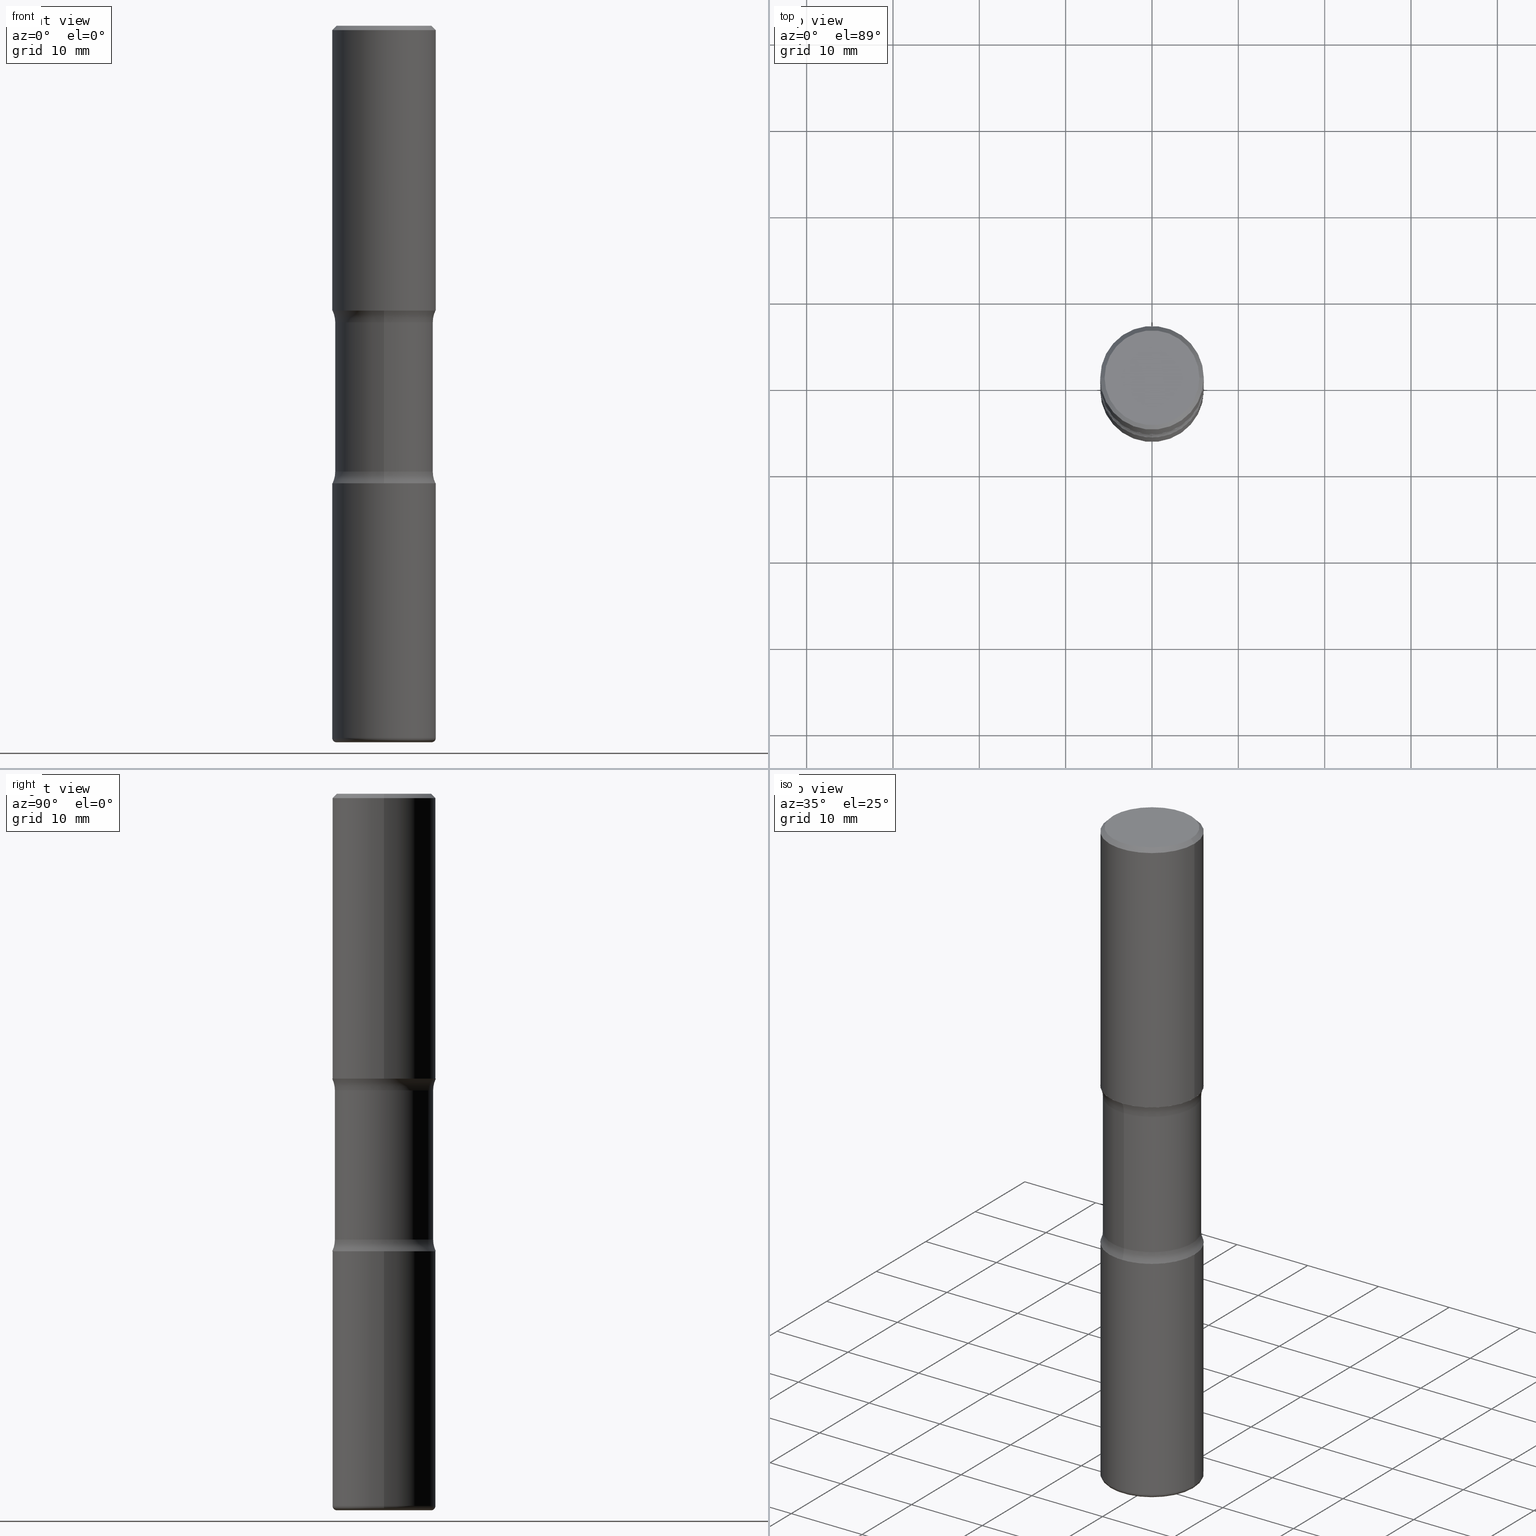
[diagram: canonical four-view strip — front | top / right | iso, engineering-drawing reading convention]
A machine part, canonical four-view strip (front | top / right | iso — engineering-drawing reading convention). The complete STEP part file that produces these views, byte-faithful:
ISO-10303-21;
HEADER;
FILE_DESCRIPTION (( 'STEP AP203' ),
    '1' );
FILE_NAME ('44641.STEP',
    '2024-03-02T02:22:08',
    ( '' ),
    ( '' ),
    'SwSTEP 2.0',
    'SolidWorks 2023',
    '' );
FILE_SCHEMA (( 'CONFIG_CONTROL_DESIGN' ));
ENDSEC;

DATA;
#1 = ORIENTED_EDGE ( 'NONE', *, *, #229, .F. ) ;
#2 = PRODUCT_DEFINITION_FORMATION_WITH_SPECIFIED_SOURCE ( 'ANY', '', #297, .NOT_KNOWN. ) ;
#3 = VERTEX_POINT ( 'NONE', #185 ) ;
#4 = ORIENTED_EDGE ( 'NONE', *, *, #502, .T. ) ;
#5 = CARTESIAN_POINT ( 'NONE',  ( -1.578600589287179513E-15, -0.2240000000000071378, -2.032737582675856469 ) ) ;
#6 = EDGE_LOOP ( 'NONE', ( #406, #545, #396, #144 ) ) ;
#7 = AXIS2_PLACEMENT_3D ( 'NONE', #197, #281, #65 ) ;
#8 = LINE ( 'NONE', #140, #350 ) ;
#9 = EDGE_CURVE ( 'NONE', #486, #104, #244, .T. ) ;
#10 = EDGE_LOOP ( 'NONE', ( #410, #77 ) ) ;
#11 = DIRECTION ( 'NONE',  ( 1.000000000000000000, -6.982962677686265922E-15, 0.000000000000000000 ) ) ;
#12 = EDGE_LOOP ( 'NONE', ( #180, #265, #146, #384 ) ) ;
#13 = FACE_OUTER_BOUND ( 'NONE', #514, .T. ) ;
#14 = CARTESIAN_POINT ( 'NONE',  ( 4.890937612370289799E-31, -6.982962677686315028E-17, -0.02000000000000006981 ) ) ;
#15 = ADVANCED_FACE ( 'NONE', ( #524 ), #218, .F. ) ;
#16 = CIRCLE ( 'NONE', #548, 0.2362000000000001598 ) ;
#17 = CARTESIAN_POINT ( 'NONE',  ( 0.2361999999999999655, -1.690279253850498574E-15, -0.02000000000000006981 ) ) ;
#18 = DIRECTION ( 'NONE',  ( 6.982962677686265922E-15, 1.000000000000000000, -3.658724991514637697E-15 ) ) ;
#19 = CARTESIAN_POINT ( 'NONE',  ( 1.509716530915770323E-15, 0.2161999999999999478, -7.633952904380885788E-16 ) ) ;
#20 = CARTESIAN_POINT ( 'NONE',  ( 4.970996349593989891E-29, -7.097265336677882202E-15, -2.032737582675857357 ) ) ;
#21 = DIRECTION ( 'NONE',  ( 2.390112245760045302E-29, -3.570755084071629599E-15, -1.000000000000000000 ) ) ;
#22 = CIRCLE ( 'NONE', #349, 0.2362000000000002431 ) ;
#23 = APPLICATION_PROTOCOL_DEFINITION ( 'international standard', 'config_control_design', 1994, #298 ) ;
#24 = CIRCLE ( 'NONE', #100, 0.2161999999999999478 ) ;
#25 = ADVANCED_FACE ( 'NONE', ( #324 ), #200, .T. ) ;
#26 = CARTESIAN_POINT ( 'NONE',  ( 3.177153072995728197E-29, -4.536132555425013945E-15, -1.299199999999999688 ) ) ;
#27 = LENGTH_MEASURE_WITH_UNIT ( LENGTH_MEASURE( 0.02539999999999999897 ), #532 );
#28 = CARTESIAN_POINT ( 'NONE',  ( 2.437053974512538889E-15, 0.3489999999999951474, -1.353062417324143452 ) ) ;
#29 = EDGE_CURVE ( 'NONE', #239, #398, #70, .T. ) ;
#30 = PERSON_AND_ORGANIZATION ( #262, #404 ) ;
#31 = FACE_OUTER_BOUND ( 'NONE', #266, .T. ) ;
#32 = EDGE_CURVE ( 'NONE', #555, #239, #337, .T. ) ;
#33 = PERSON_AND_ORGANIZATION ( #262, #404 ) ;
#34 = AXIS2_PLACEMENT_3D ( 'NONE', #400, #126, #294 ) ;
#35 = DIRECTION ( 'NONE',  ( -2.445468806185136597E-29, 3.491481338843145583E-15, 1.000000000000000000 ) ) ;
#36 = CC_DESIGN_APPROVAL ( #221, ( #2 ) ) ;
#37 = ORIENTED_EDGE ( 'NONE', *, *, #502, .F. ) ;
#38 = CALENDAR_DATE ( 2024, 1, 3 ) ;
#39 = CARTESIAN_POINT ( 'NONE',  ( 1.649375784469529460E-15, 0.2361999999999957189, -1.299200000000000799 ) ) ;
#40 = ORIENTED_EDGE ( 'NONE', *, *, #389, .T. ) ;
#41 = EDGE_CURVE ( 'NONE', #351, #486, #274, .T. ) ;
#42 = ORIENTED_EDGE ( 'NONE', *, *, #539, .F. ) ;
#43 = CONICAL_SURFACE ( 'NONE', #117, 0.2361999999999999655, 0.7853981633974477239 ) ;
#44 = AXIS2_PLACEMENT_3D ( 'NONE', #96, #470, #431 ) ;
#45 = EDGE_LOOP ( 'NONE', ( #89, #257, #37, #408 ) ) ;
#46 = ORIENTED_EDGE ( 'NONE', *, *, #158, .T. ) ;
#47 = CARTESIAN_POINT ( 'NONE',  ( 3.220740828674445240E-29, -4.473712408432105262E-15, -1.299199999999999688 ) ) ;
#48 = DIRECTION ( 'NONE',  ( 2.390112245760045302E-29, -3.570755084071629599E-15, -1.000000000000000000 ) ) ;
#49 = CARTESIAN_POINT ( 'NONE',  ( 7.942149041847466380E-29, -1.133928394416088156E-14, -3.247699999999999143 ) ) ;
#50 = CARTESIAN_POINT ( 'NONE',  ( 3.356562915839818253E-29, -4.655895980535632332E-15, -1.353062417324141897 ) ) ;
#51 = AXIS2_PLACEMENT_3D ( 'NONE', #535, #202, #288 ) ;
#52 = CC_DESIGN_APPROVAL ( #76, ( #310 ) ) ;
#53 = DIRECTION ( 'NONE',  ( 1.000000000000000000, -6.982962677686266711E-15, 4.876176775795935793E-29 ) ) ;
#54 = CARTESIAN_POINT ( 'NONE',  ( -2.394313801222215486E-15, -0.3490000000000071934, -2.032737582675856025 ) ) ;
#55 = DIRECTION ( 'NONE',  ( 2.390112245760045022E-29, -3.570755084071629599E-15, -1.000000000000000000 ) ) ;
#56 = EDGE_CURVE ( 'NONE', #439, #104, #533, .T. ) ;
#57 = ORIENTED_EDGE ( 'NONE', *, *, #136, .T. ) ;
#58 = DIRECTION ( 'NONE',  ( 1.000000000000000000, -6.982962677686266711E-15, 4.875778670202486949E-29 ) ) ;
#59 = DIRECTION ( 'NONE',  ( 1.000000000000000000, -6.982962677686265922E-15, 0.000000000000000000 ) ) ;
#60 = VECTOR ( 'NONE', #225, 39.37007874015748143 ) ;
#61 = AXIS2_PLACEMENT_3D ( 'NONE', #124, #355, #554 ) ;
#62 = FACE_OUTER_BOUND ( 'NONE', #448, .T. ) ;
#63 = LOCAL_TIME ( 21, 22, 8.000000000000000000, #123 ) ;
#64 = CARTESIAN_POINT ( 'NONE',  ( -1.578600589287196671E-15, -0.2240000000000045843, -1.353062417324141231 ) ) ;
#65 = DIRECTION ( 'NONE',  ( 6.982962677686265922E-15, 1.000000000000000000, -3.658724991514639274E-15 ) ) ;
#66 = EDGE_LOOP ( 'NONE', ( #159, #254, #378, #472 ) ) ;
#67 = EDGE_CURVE ( 'NONE', #353, #511, #22, .T. ) ;
#68 = PLANE ( 'NONE',  #273 ) ;
#69 = FACE_OUTER_BOUND ( 'NONE', #216, .T. ) ;
#70 = CIRCLE ( 'NONE', #427, 0.1250000000000000278 ) ;
#71 = PERSON_AND_ORGANIZATION ( #262, #404 ) ;
#72 = AXIS2_PLACEMENT_3D ( 'NONE', #28, #419, #238 ) ;
#73 = LINE ( 'NONE', #373, #330 ) ;
#74 = EDGE_LOOP ( 'NONE', ( #135, #558, #1, #484 ) ) ;
#75 = CARTESIAN_POINT ( 'NONE',  ( 0.000000000000000000, 0.000000000000000000, 0.000000000000000000 ) ) ;
#76 = APPROVAL ( #209, 'UNSPECIFIED' ) ;
#77 = ORIENTED_EDGE ( 'NONE', *, *, #389, .F. ) ;
#78 = DATE_AND_TIME ( #466, #464 ) ;
#79 = DIRECTION ( 'NONE',  ( 2.390112245760045302E-29, -3.570755084071629599E-15, -1.000000000000000000 ) ) ;
#80 = ORIENTED_EDGE ( 'NONE', *, *, #32, .T. ) ;
#81 = DATE_AND_TIME ( #469, #283 ) ;
#82 = AXIS2_PLACEMENT_3D ( 'NONE', #50, #440, #150 ) ;
#83 = CIRCLE ( 'NONE', #372, 0.2240000000000000324 ) ;
#84 = AXIS2_PLACEMENT_3D ( 'NONE', #20, #449, #192 ) ;
#85 = PLANE ( 'NONE',  #182 ) ;
#86 = AXIS2_PLACEMENT_3D ( 'NONE', #454, #500, #11 ) ;
#87 = ORIENTED_EDGE ( 'NONE', *, *, #232, .F. ) ;
#88 = CARTESIAN_POINT ( 'NONE',  ( 7.925676784453094467E-29, -1.150274379142710749E-14, -3.267699999999999605 ) ) ;
#89 = ORIENTED_EDGE ( 'NONE', *, *, #553, .T. ) ;
#90 = EDGE_CURVE ( 'NONE', #230, #341, #461, .T. ) ;
#91 = EDGE_LOOP ( 'NONE', ( #432, #477, #259, #305 ) ) ;
#92 = TOROIDAL_SURFACE ( 'NONE', #137, 0.3490000000000000879, 0.1250000000000000555 ) ;
#93 = ORIENTED_EDGE ( 'NONE', *, *, #133, .T. ) ;
#94 = PRODUCT_RELATED_PRODUCT_CATEGORY ( 'detail', '', ( #297 ) ) ;
#95 = DIRECTION ( 'NONE',  ( -2.445468806185136597E-29, 3.491481338843145583E-15, 1.000000000000000000 ) ) ;
#96 = CARTESIAN_POINT ( 'NONE',  ( 0.000000000000000000, 0.000000000000000000, 0.000000000000000000 ) ) ;
#97 = ORIENTED_EDGE ( 'NONE', *, *, #229, .T. ) ;
#98 = CARTESIAN_POINT ( 'NONE',  ( 4.890937612370289799E-31, -6.982962677686315028E-17, -0.02000000000000006981 ) ) ;
#99 = ORIENTED_EDGE ( 'NONE', *, *, #203, .T. ) ;
#100 = AXIS2_PLACEMENT_3D ( 'NONE', #153, #286, #58 ) ;
#101 = CIRCLE ( 'NONE', #393, 0.2162000000000001421 ) ;
#102 = CC_DESIGN_PERSON_AND_ORGANIZATION_ASSIGNMENT ( #30, #252, ( #297 ) ) ;
#103 = DIRECTION ( 'NONE',  ( 1.000000000000000000, -6.982962677686271444E-15, 0.000000000000000000 ) ) ;
#104 = VERTEX_POINT ( 'NONE', #17 ) ;
#105 = DIRECTION ( 'NONE',  ( 2.390112245760045302E-29, -3.570755084071629599E-15, -1.000000000000000000 ) ) ;
#106 = ORIENTED_EDGE ( 'NONE', *, *, #322, .F. ) ;
#107 = CARTESIAN_POINT ( 'NONE',  ( 2.224552586656857540E-29, -1.966707813050916280E-14, -3.267699999999999605 ) ) ;
#108 = DIRECTION ( 'NONE',  ( -2.445468806185136597E-29, 3.491481338843145583E-15, 1.000000000000000000 ) ) ;
#109 = ADVANCED_FACE ( 'NONE', ( #504 ), #43, .T. ) ;
#110 = CARTESIAN_POINT ( 'NONE',  ( 1.649375784469548393E-15, 0.2361999999999929711, -2.086600000000000676 ) ) ;
#111 = CARTESIAN_POINT ( 'NONE',  ( 3.177153072995728197E-29, -4.536132555425013945E-15, -1.299199999999999688 ) ) ;
#112 = EDGE_CURVE ( 'NONE', #468, #3, #453, .T. ) ;
#113 = DIRECTION ( 'NONE',  ( -2.445468806185136597E-29, 3.491481338843145583E-15, 1.000000000000000000 ) ) ;
#114 = DIRECTION ( 'NONE',  ( 1.000000000000000000, -6.982962677686266711E-15, 4.876176775795935793E-29 ) ) ;
#115 = APPROVAL_STATUS ( 'not_yet_approved' ) ;
#116 = CARTESIAN_POINT ( 'NONE',  ( 1.564183639801802684E-15, 0.2239999999999884583, -3.267700000000000049 ) ) ;
#117 = AXIS2_PLACEMENT_3D ( 'NONE', #154, #152, #465 ) ;
#118 = PERSON_AND_ORGANIZATION_ROLE ( 'classification_officer' ) ;
#119 = AXIS2_PLACEMENT_3D ( 'NONE', #157, #423, #333 ) ;
#120 = CC_DESIGN_PERSON_AND_ORGANIZATION_ASSIGNMENT ( #71, #543, ( #2 ) ) ;
#121 = AXIS2_PLACEMENT_3D ( 'NONE', #107, #323, #325 ) ;
#122 = DIRECTION ( 'NONE',  ( 1.000000000000000000, -6.860497997771530774E-15, 4.839828056240638266E-29 ) ) ;
#123 = COORDINATED_UNIVERSAL_TIME_OFFSET ( 5, 0, .BEHIND. ) ;
#124 = CARTESIAN_POINT ( 'NONE',  ( 5.102715210985905155E-29, -7.285324961630105839E-15, -2.086599999999999344 ) ) ;
#125 = DIRECTION ( 'NONE',  ( 1.000000000000000000, 0.000000000000000000, 0.000000000000000000 ) ) ;
#126 = DIRECTION ( 'NONE',  ( 2.390112245760045302E-29, -3.570755084071629599E-15, -1.000000000000000000 ) ) ;
#127 = ORIENTED_EDGE ( 'NONE', *, *, #67, .T. ) ;
#128 = CALENDAR_DATE ( 2024, 1, 3 ) ;
#129 = CLOSED_SHELL ( 'NONE', ( #399, #362, #109, #151, #447, #247 ) ) ;
#130 = AXIS2_PLACEMENT_3D ( 'NONE', #98, #343, #258 ) ;
#131 = DIRECTION ( 'NONE',  ( 2.390112245760045302E-29, -3.570755084071629599E-15, -1.000000000000000000 ) ) ;
#132 = EDGE_LOOP ( 'NONE', ( #4, #127 ) ) ;
#133 = EDGE_CURVE ( 'NONE', #468, #308, #289, .T. ) ;
#134 = ORIENTED_EDGE ( 'NONE', *, *, #174, .F. ) ;
#135 = ORIENTED_EDGE ( 'NONE', *, *, #148, .T. ) ;
#136 = EDGE_CURVE ( 'NONE', #351, #212, #328, .T. ) ;
#137 = AXIS2_PLACEMENT_3D ( 'NONE', #336, #415, #507 ) ;
#138 = VERTEX_POINT ( 'NONE', #64 ) ;
#139 = AXIS2_PLACEMENT_3D ( 'NONE', #446, #55, #284 ) ;
#140 = CARTESIAN_POINT ( 'NONE',  ( -0.2361999999999999655, 1.579546157692632833E-15, -0.02000000000000006981 ) ) ;
#141 = CARTESIAN_POINT ( 'NONE',  ( 5.102715210985905155E-29, -7.285324961630105839E-15, -2.086599999999999344 ) ) ;
#142 = DIRECTION ( 'NONE',  ( 2.390112245760045302E-29, -3.570755084071629599E-15, -1.000000000000000000 ) ) ;
#143 = DIMENSIONAL_EXPONENTS ( 1.000000000000000000, 0.000000000000000000, 0.000000000000000000, 0.000000000000000000, 0.000000000000000000, 0.000000000000000000, 0.000000000000000000 ) ;
#144 = ORIENTED_EDGE ( 'NONE', *, *, #339, .F. ) ;
#145 = CARTESIAN_POINT ( 'NONE',  ( -0.2362000000000002431, 1.678301941865358366E-15, -1.161852468318209878E-29 ) ) ;
#146 = ORIENTED_EDGE ( 'NONE', *, *, #306, .T. ) ;
#147 = LOCAL_TIME ( 21, 22, 8.000000000000000000, #459 ) ;
#148 = EDGE_CURVE ( 'NONE', #212, #351, #290, .T. ) ;
#149 = PLANE ( 'NONE',  #121 ) ;
#150 = DIRECTION ( 'NONE',  ( 6.982962677686265133E-15, 1.000000000000000000, -3.570755084071629599E-15 ) ) ;
#151 = ADVANCED_FACE ( 'NONE', ( #326 ), #455, .F. ) ;
#152 = DIRECTION ( 'NONE',  ( 2.445468806185136597E-29, -3.491481338843145583E-15, -1.000000000000000000 ) ) ;
#153 = CARTESIAN_POINT ( 'NONE',  ( 4.175405657340879278E-46, -5.961372681521788801E-32, -1.707404996040164512E-17 ) ) ;
#154 = CARTESIAN_POINT ( 'NONE',  ( 4.890937612370289799E-31, -6.982962677686315028E-17, -0.02000000000000006981 ) ) ;
#155 = LOCAL_TIME ( 21, 22, 8.000000000000000000, #169 ) ;
#156 = CARTESIAN_POINT ( 'NONE',  ( 3.177153072995728197E-29, -4.536132555425013945E-15, -1.299199999999999688 ) ) ;
#157 = CARTESIAN_POINT ( 'NONE',  ( 4.890937612370289799E-31, -6.982962677686315028E-17, -0.02000000000000006981 ) ) ;
#158 = EDGE_CURVE ( 'NONE', #138, #398, #241, .T. ) ;
#159 = ORIENTED_EDGE ( 'NONE', *, *, #492, .T. ) ;
#160 = PERSON_AND_ORGANIZATION_ROLE ( 'creator' ) ;
#161 = DIRECTION ( 'NONE',  ( -2.445468806185136597E-29, 3.491481338843145583E-15, 1.000000000000000000 ) ) ;
#162 = ADVANCED_FACE ( 'NONE', ( #31 ), #92, .F. ) ;
#163 = PERSON_AND_ORGANIZATION_ROLE ( 'design_supplier' ) ;
#164 = CARTESIAN_POINT ( 'NONE',  ( 0.2162000000000001421, -1.291883010185351952E-14, -3.267700000000000049 ) ) ;
#165 = ORIENTED_EDGE ( 'NONE', *, *, #306, .F. ) ;
#166 = AXIS2_PLACEMENT_3D ( 'NONE', #357, #189, #187 ) ;
#167 = AXIS2_PLACEMENT_3D ( 'NONE', #375, #122, #208 ) ;
#168 = FACE_OUTER_BOUND ( 'NONE', #45, .T. ) ;
#169 = COORDINATED_UNIVERSAL_TIME_OFFSET ( 5, 0, .BEHIND. ) ;
#170 = CARTESIAN_POINT ( 'NONE',  ( -1.620449627073604707E-15, -0.2362000000000046285, -1.299199999999998578 ) ) ;
#171 = EDGE_LOOP ( 'NONE', ( #493, #57, #435, #316 ) ) ;
#172 = PERSON_AND_ORGANIZATION ( #262, #404 ) ;
#173 = DIRECTION ( 'NONE',  ( -2.445468806185136597E-29, 3.491481338843145583E-15, 1.000000000000000000 ) ) ;
#174 = EDGE_CURVE ( 'NONE', #138, #468, #521, .T. ) ;
#175 = ORIENTED_EDGE ( 'NONE', *, *, #313, .T. ) ;
#176 = CIRCLE ( 'NONE', #487, 0.2162000000000001421 ) ;
#177 = ORIENTED_EDGE ( 'NONE', *, *, #32, .F. ) ;
#178 = VERTEX_POINT ( 'NONE', #287 ) ;
#179 = ADVANCED_FACE ( 'NONE', ( #417 ), #248, .T. ) ;
#180 = ORIENTED_EDGE ( 'NONE', *, *, #56, .F. ) ;
#181 = FACE_OUTER_BOUND ( 'NONE', #74, .T. ) ;
#182 = AXIS2_PLACEMENT_3D ( 'NONE', #299, #358, #426 ) ;
#183 = ORIENTED_EDGE ( 'NONE', *, *, #313, .F. ) ;
#184 = DIRECTION ( 'NONE',  ( -2.445468806185136597E-29, 3.491481338843145583E-15, 1.000000000000000000 ) ) ;
#185 = CARTESIAN_POINT ( 'NONE',  ( 1.564183639801773497E-15, 0.2239999999999929270, -2.032737582675858246 ) ) ;
#186 = CARTESIAN_POINT ( 'NONE',  ( 0.2362000000000002431, -8.934700746099602364E-15, -2.086599999999999344 ) ) ;
#187 = DIRECTION ( 'NONE',  ( 1.000000000000000000, -6.982962677686262766E-15, 4.883557194083112340E-29 ) ) ;
#188 = DIRECTION ( 'NONE',  ( 1.000000000000000000, -6.982962677686265922E-15, 0.000000000000000000 ) ) ;
#189 = DIRECTION ( 'NONE',  ( -2.445468806185136597E-29, 3.491481338843145583E-15, 1.000000000000000000 ) ) ;
#190 = CIRCLE ( 'NONE', #498, 0.2362000000000002431 ) ;
#191 = EDGE_CURVE ( 'NONE', #442, #269, #529, .T. ) ;
#192 = DIRECTION ( 'NONE',  ( 6.982962677686265133E-15, 1.000000000000000000, -3.570755084071629599E-15 ) ) ;
#193 = EDGE_LOOP ( 'NONE', ( #338, #261, #97, #165 ) ) ;
#194 = CC_DESIGN_PERSON_AND_ORGANIZATION_ASSIGNMENT ( #207, #160, ( #525 ) ) ;
#195 = CARTESIAN_POINT ( 'NONE',  ( 7.991058417971171713E-29, -1.140911357093774644E-14, -3.267700000000000049 ) ) ;
#196 = MANIFOLD_SOLID_BREP ( 'Body-Move/Copy2[2]', #129 ) ;
#197 = CARTESIAN_POINT ( 'NONE',  ( 3.349478051907115554E-29, -4.666041908932675177E-15, -1.353062417324141897 ) ) ;
#198 = CARTESIAN_POINT ( 'NONE',  ( 0.2362000000000002431, -1.649375784469497906E-15, 1.151752954443001209E-29 ) ) ;
#199 = DIRECTION ( 'NONE',  ( -2.445468806185136597E-29, 3.491481338843145583E-15, 1.000000000000000000 ) ) ;
#200 = TOROIDAL_SURFACE ( 'NONE', #166, 0.2162000000000001421, 0.02000000000000021205 ) ;
#201 = AXIS2_PLACEMENT_3D ( 'NONE', #249, #546, #125 ) ;
#202 = DIRECTION ( 'NONE',  ( 7.105427357601001859E-15, 1.000000000000000000, -3.491481338843145583E-15 ) ) ;
#203 = EDGE_CURVE ( 'NONE', #439, #178, #537, .T. ) ;
#204 =( NAMED_UNIT ( * ) PLANE_ANGLE_UNIT ( ) SI_UNIT ( $, .RADIAN. ) );
#205 = CARTESIAN_POINT ( 'NONE',  ( 0.2362000000000002431, -6.185508339894511259E-15, -1.299199999999999688 ) ) ;
#206 = EDGE_LOOP ( 'NONE', ( #519, #177, #528, #251 ) ) ;
#207 = PERSON_AND_ORGANIZATION ( #262, #404 ) ;
#208 = DIRECTION ( 'NONE',  ( 6.860497997771529985E-15, 1.000000000000000000, 0.000000000000000000 ) ) ;
#209 = APPROVAL_STATUS ( 'not_yet_approved' ) ;
#210 = AXIS2_PLACEMENT_3D ( 'NONE', #26, #161, #329 ) ;
#211 = CARTESIAN_POINT ( 'NONE',  ( 5.102715210985905155E-29, -7.285324961630105839E-15, -2.086599999999999344 ) ) ;
#212 = VERTEX_POINT ( 'NONE', #205 ) ;
#213 = DATE_AND_TIME ( #38, #155 ) ;
#214 = EDGE_CURVE ( 'NONE', #212, #104, #73, .T. ) ;
#215 = CARTESIAN_POINT ( 'NONE',  ( -0.2362000000000002709, -6.246791492355790717E-16, -1.299199999999999688 ) ) ;
#216 = EDGE_LOOP ( 'NONE', ( #344, #480, #222, #217 ) ) ;
#217 = ORIENTED_EDGE ( 'NONE', *, *, #67, .F. ) ;
#218 = TOROIDAL_SURFACE ( 'NONE', #82, 0.3489999999999998104, 0.1249999999999999445 ) ;
#219 = CIRCLE ( 'NONE', #331, 0.2362000000000002431 ) ;
#220 = CC_DESIGN_SECURITY_CLASSIFICATION ( #310, ( #2 ) ) ;
#221 = APPROVAL ( #115, 'UNSPECIFIED' ) ;
#222 = ORIENTED_EDGE ( 'NONE', *, *, #457, .T. ) ;
#223 = ORIENTED_EDGE ( 'NONE', *, *, #492, .F. ) ;
#224 = DIRECTION ( 'NONE',  ( 6.982962677686265922E-15, 1.000000000000000000, -2.439149994343092850E-15 ) ) ;
#225 = DIRECTION ( 'NONE',  ( 0.7071067811865471286, -7.319954787623254468E-15, -0.7071067811865479058 ) ) ;
#226 = DIRECTION ( 'NONE',  ( 2.390112245760045302E-29, -3.570755084071629599E-15, -1.000000000000000000 ) ) ;
#227 = VECTOR ( 'NONE', #411, 39.37007874015748143 ) ;
#228 = DIRECTION ( 'NONE',  ( 6.982962677686265922E-15, 1.000000000000000000, -3.469747663417774636E-15 ) ) ;
#229 = EDGE_CURVE ( 'NONE', #104, #486, #282, .T. ) ;
#230 = VERTEX_POINT ( 'NONE', #164 ) ;
#231 = EDGE_LOOP ( 'NONE', ( #175, #46, #106, #307 ) ) ;
#232 = EDGE_CURVE ( 'NONE', #138, #388, #438, .T. ) ;
#233 = LINE ( 'NONE', #145, #227 ) ;
#234 = AXIS2_PLACEMENT_3D ( 'NONE', #482, #235, #413 ) ;
#235 = DIRECTION ( 'NONE',  ( -6.982962677686266711E-15, -1.000000000000000000, 3.491481338843145583E-15 ) ) ;
#236 = AXIS2_PLACEMENT_3D ( 'NONE', #256, #549, #444 ) ;
#237 = DIRECTION ( 'NONE',  ( -2.438088387897960049E-29, 3.491481338843145188E-15, 1.000000000000000000 ) ) ;
#238 = DIRECTION ( 'NONE',  ( -6.982962677686265133E-15, -1.000000000000000000, 0.000000000000000000 ) ) ;
#239 = VERTEX_POINT ( 'NONE', #292 ) ;
#240 = DIRECTION ( 'NONE',  ( 1.000000000000000000, -6.982962677686266711E-15, 4.876176775795935793E-29 ) ) ;
#241 = LINE ( 'NONE', #285, #481 ) ;
#242 = CALENDAR_DATE ( 2024, 1, 3 ) ;
#243 = DIRECTION ( 'NONE',  ( 2.390112245760045022E-29, -3.570755084071629599E-15, -1.000000000000000000 ) ) ;
#244 = CIRCLE ( 'NONE', #364, 0.2361999999999999655 ) ;
#245 = AXIS2_PLACEMENT_3D ( 'NONE', #536, #363, #18 ) ;
#246 = APPROVAL_ROLE ( '' ) ;
#247 = ADVANCED_FACE ( 'NONE', ( #501 ), #541, .T. ) ;
#248 = CYLINDRICAL_SURFACE ( 'NONE', #412, 0.2239999999999999492 ) ;
#249 = CARTESIAN_POINT ( 'NONE',  ( 0.000000000000000000, 0.000000000000000000, 0.000000000000000000 ) ) ;
#250 = DIRECTION ( 'NONE',  ( -2.445468806185136597E-29, 3.491481338843145583E-15, 1.000000000000000000 ) ) ;
#251 = ORIENTED_EDGE ( 'NONE', *, *, #322, .T. ) ;
#252 = PERSON_AND_ORGANIZATION_ROLE ( 'design_owner' ) ;
#253 = CARTESIAN_POINT ( 'NONE',  ( 0.2362000000000002709, -1.298865972863037967E-14, -3.247699999999999143 ) ) ;
#254 = ORIENTED_EDGE ( 'NONE', *, *, #191, .T. ) ;
#255 = AXIS2_PLACEMENT_3D ( 'NONE', #111, #108, #544 ) ;
#256 = CARTESIAN_POINT ( 'NONE',  ( 2.437053974512557033E-15, 0.3489999999999929825, -2.032737582675858690 ) ) ;
#257 = ORIENTED_EDGE ( 'NONE', *, *, #460, .T. ) ;
#258 = DIRECTION ( 'NONE',  ( -1.000000000000000000, 6.982962677686266711E-15, 0.000000000000000000 ) ) ;
#259 = ORIENTED_EDGE ( 'NONE', *, *, #112, .T. ) ;
#260 = ADVANCED_FACE ( 'NONE', ( #69 ), #380, .T. ) ;
#261 = ORIENTED_EDGE ( 'NONE', *, *, #56, .T. ) ;
#262 = PERSON ( 'UNSPECIFIED', 'UNSPECIFIED', 'UNSPECIFIED', ('UNSPECIFIED'), ('UNSPECIFIED'), ('UNSPECIFIED') ) ;
#263 = AXIS2_PLACEMENT_3D ( 'NONE', #75, #250, #114 ) ;
#264 = APPROVAL_PERSON_ORGANIZATION ( #293, #221, #246 ) ;
#265 = ORIENTED_EDGE ( 'NONE', *, *, #474, .F. ) ;
#266 = EDGE_LOOP ( 'NONE', ( #520, #359, #300, #445 ) ) ;
#267 = DIRECTION ( 'NONE',  ( 6.982962677686265922E-15, 1.000000000000000000, -3.469747663417773452E-15 ) ) ;
#268 = APPLICATION_CONTEXT ( 'configuration controlled 3d designs of mechanical parts and assemblies' ) ;
#269 = VERTEX_POINT ( 'NONE', #386 ) ;
#270 = EDGE_CURVE ( 'NONE', #555, #3, #365, .T. ) ;
#271 = CYLINDRICAL_SURFACE ( 'NONE', #402, 0.2362000000000002431 ) ;
#272 = VECTOR ( 'NONE', #314, 39.37007874015748143 ) ;
#273 = AXIS2_PLACEMENT_3D ( 'NONE', #156, #237, #530 ) ;
#274 = LINE ( 'NONE', #361, #272 ) ;
#275 = FACE_OUTER_BOUND ( 'NONE', #10, .T. ) ;
#276 = CARTESIAN_POINT ( 'NONE',  ( 5.102715210985905155E-29, -7.285324961630105839E-15, -2.086599999999999344 ) ) ;
#277 = CARTESIAN_POINT ( 'NONE',  ( 3.356562915839818253E-29, -4.655895980535632332E-15, -1.353062417324141897 ) ) ;
#278 = EDGE_CURVE ( 'NONE', #239, #555, #190, .T. ) ;
#279 = DIRECTION ( 'NONE',  ( -2.445468806185136597E-29, 3.491481338843145583E-15, 1.000000000000000000 ) ) ;
#280 = DESIGN_CONTEXT ( 'detailed design', #298, 'design' ) ;
#281 = DIRECTION ( 'NONE',  ( 2.390112245760045302E-29, -3.570755084071629599E-15, -1.000000000000000000 ) ) ;
#282 = CIRCLE ( 'NONE', #119, 0.2361999999999999655 ) ;
#283 = LOCAL_TIME ( 21, 22, 8.000000000000000000, #345 ) ;
#284 = DIRECTION ( 'NONE',  ( 6.982962677686265922E-15, 1.000000000000000000, -3.570755084071629599E-15 ) ) ;
#285 = CARTESIAN_POINT ( 'NONE',  ( -1.536751551500743275E-15, -0.2240000000000114677, -3.267699999999999161 ) ) ;
#286 = DIRECTION ( 'NONE',  ( -2.445468806185136597E-29, 3.491481338843145583E-15, 1.000000000000000000 ) ) ;
#287 = CARTESIAN_POINT ( 'NONE',  ( -0.2161999999999999478, 1.544631344304201775E-15, -1.707404996041232555E-17 ) ) ;
#288 = DIRECTION ( 'NONE',  ( -1.000000000000000000, 7.105427357601049190E-15, 0.000000000000000000 ) ) ;
#289 = CIRCLE ( 'NONE', #72, 0.1249999999999999584 ) ;
#290 = CIRCLE ( 'NONE', #255, 0.2362000000000002431 ) ;
#291 = COORDINATED_UNIVERSAL_TIME_OFFSET ( 5, 0, .BEHIND. ) ;
#292 = CARTESIAN_POINT ( 'NONE',  ( -1.620449627073586564E-15, -0.2362000000000075151, -2.086599999999998456 ) ) ;
#293 = PERSON_AND_ORGANIZATION ( #262, #404 ) ;
#294 = DIRECTION ( 'NONE',  ( 6.982962677686265922E-15, 1.000000000000000000, -3.658724991514639274E-15 ) ) ;
#295 = ADVANCED_FACE ( 'NONE', ( #168 ), #271, .T. ) ;
#296 = PERSON_AND_ORGANIZATION ( #262, #404 ) ;
#297 = PRODUCT ( '44641', '44641', '', ( #540 ) ) ;
#298 = APPLICATION_CONTEXT ( 'configuration controlled 3d designs of mechanical parts and assemblies' ) ;
#299 = CARTESIAN_POINT ( 'NONE',  ( 5.102715210985905155E-29, -7.285324961630105839E-15, -2.086599999999999344 ) ) ;
#300 = ORIENTED_EDGE ( 'NONE', *, *, #495, .T. ) ;
#301 = TOROIDAL_SURFACE ( 'NONE', #513, 0.2162000000000001421, 0.02000000000000021205 ) ;
#302 = DATE_AND_TIME ( #242, #147 ) ;
#303 = APPROVAL_PERSON_ORGANIZATION ( #296, #421, #376 ) ;
#304 = FACE_OUTER_BOUND ( 'NONE', #231, .T. ) ;
#305 = ORIENTED_EDGE ( 'NONE', *, *, #495, .F. ) ;
#306 = EDGE_CURVE ( 'NONE', #178, #486, #8, .T. ) ;
#307 = ORIENTED_EDGE ( 'NONE', *, *, #112, .F. ) ;
#308 = VERTEX_POINT ( 'NONE', #39 ) ;
#309 = CONICAL_SURFACE ( 'NONE', #130, 0.2361999999999999655, 0.7853981633974477239 ) ;
#310 = SECURITY_CLASSIFICATION ( '', '', #505 ) ;
#311 = CARTESIAN_POINT ( 'NONE',  ( 0.2361999999999999655, -1.690279253850498574E-15, -0.02000000000000006981 ) ) ;
#312 = DIRECTION ( 'NONE',  ( 1.000000000000000000, -6.982962677686265922E-15, 0.000000000000000000 ) ) ;
#313 = EDGE_CURVE ( 'NONE', #468, #138, #429, .T. ) ;
#314 = DIRECTION ( 'NONE',  ( -2.445468806185136877E-29, 3.491481338843145188E-15, 1.000000000000000000 ) ) ;
#315 = FACE_OUTER_BOUND ( 'NONE', #66, .T. ) ;
#316 = ORIENTED_EDGE ( 'NONE', *, *, #9, .F. ) ;
#317 = ADVANCED_FACE ( 'NONE', ( #315 ), #301, .T. ) ;
#318 = DIRECTION ( 'NONE',  ( -2.445468806185136597E-29, 3.491481338843145583E-15, 1.000000000000000000 ) ) ;
#319 = CIRCLE ( 'NONE', #245, 0.2240000000000000324 ) ;
#320 = TOROIDAL_SURFACE ( 'NONE', #84, 0.3490000000000000879, 0.1250000000000000555 ) ;
#321 = ORIENTED_EDGE ( 'NONE', *, *, #148, .F. ) ;
#322 = EDGE_CURVE ( 'NONE', #3, #398, #83, .T. ) ;
#323 = DIRECTION ( 'NONE',  ( 2.438088387897960049E-29, -3.491481338843145188E-15, -1.000000000000000000 ) ) ;
#324 = FACE_OUTER_BOUND ( 'NONE', #6, .T. ) ;
#325 = DIRECTION ( 'NONE',  ( -1.000000000000000000, 6.982962677686265922E-15, -4.876176775795935793E-29 ) ) ;
#326 = FACE_OUTER_BOUND ( 'NONE', #348, .T. ) ;
#327 = CARTESIAN_POINT ( 'NONE',  ( 1.564183639801756536E-15, 0.2239999999999952307, -1.353062417324142785 ) ) ;
#328 = CIRCLE ( 'NONE', #210, 0.2362000000000002431 ) ;
#329 = DIRECTION ( 'NONE',  ( 1.000000000000000000, -6.982962677686265922E-15, 0.000000000000000000 ) ) ;
#330 = VECTOR ( 'NONE', #538, 39.37007874015748143 ) ;
#331 = AXIS2_PLACEMENT_3D ( 'NONE', #488, #318, #188 ) ;
#332 = DIRECTION ( 'NONE',  ( -2.445468806185136877E-29, 3.491481338843145188E-15, 1.000000000000000000 ) ) ;
#333 = DIRECTION ( 'NONE',  ( 1.000000000000000000, -6.982962677686266711E-15, 0.000000000000000000 ) ) ;
#334 = CC_DESIGN_DATE_AND_TIME_ASSIGNMENT ( #503, #418, ( #525 ) ) ;
#335 =( NAMED_UNIT ( * ) SI_UNIT ( $, .STERADIAN. ) SOLID_ANGLE_UNIT ( ) );
#336 = CARTESIAN_POINT ( 'NONE',  ( 4.970996349593989891E-29, -7.097265336677882202E-15, -2.032737582675857357 ) ) ;
#337 = CIRCLE ( 'NONE', #391, 0.2362000000000002431 ) ;
#338 = ORIENTED_EDGE ( 'NONE', *, *, #203, .F. ) ;
#339 = EDGE_CURVE ( 'NONE', #269, #341, #356, .T. ) ;
#340 = CARTESIAN_POINT ( 'NONE',  ( -0.2362000000000002431, -7.634002511030135730E-15, -2.086599999999999344 ) ) ;
#341 = VERTEX_POINT ( 'NONE', #253 ) ;
#342 =( CONVERSION_BASED_UNIT ( 'INCH', #27 ) LENGTH_UNIT ( ) NAMED_UNIT ( #143 ) );
#343 = DIRECTION ( 'NONE',  ( 2.445468806185136597E-29, -3.491481338843145583E-15, -1.000000000000000000 ) ) ;
#344 = ORIENTED_EDGE ( 'NONE', *, *, #460, .F. ) ;
#345 = COORDINATED_UNIVERSAL_TIME_OFFSET ( 5, 0, .BEHIND. ) ;
#346 = FACE_OUTER_BOUND ( 'NONE', #516, .T. ) ;
#347 = ADVANCED_FACE ( 'NONE', ( #483 ), #85, .F. ) ;
#348 = EDGE_LOOP ( 'NONE', ( #424, #99 ) ) ;
#349 = AXIS2_PLACEMENT_3D ( 'NONE', #141, #279, #59 ) ;
#350 = VECTOR ( 'NONE', #523, 39.37007874015748143 ) ;
#351 = VERTEX_POINT ( 'NONE', #215 ) ;
#352 = EDGE_CURVE ( 'NONE', #308, #388, #16, .T. ) ;
#353 = VERTEX_POINT ( 'NONE', #340 ) ;
#354 = ORIENTED_EDGE ( 'NONE', *, *, #278, .T. ) ;
#355 = DIRECTION ( 'NONE',  ( -2.390112245760045022E-29, 3.570755084071629599E-15, 1.000000000000000000 ) ) ;
#356 = CIRCLE ( 'NONE', #506, 0.2362000000000002431 ) ;
#357 = CARTESIAN_POINT ( 'NONE',  ( 7.942149041847467501E-29, -1.133928394416088314E-14, -3.247700000000000031 ) ) ;
#358 = DIRECTION ( 'NONE',  ( 2.438088387897960049E-29, -3.491481338843145188E-15, -1.000000000000000000 ) ) ;
#359 = ORIENTED_EDGE ( 'NONE', *, *, #29, .T. ) ;
#360 = CARTESIAN_POINT ( 'NONE',  ( 7.991058417971171713E-29, -1.140911357093774644E-14, -3.267700000000000049 ) ) ;
#361 = CARTESIAN_POINT ( 'NONE',  ( -0.2362000000000001043, 1.678301941865357380E-15, -1.161852468318209317E-29 ) ) ;
#362 = ADVANCED_FACE ( 'NONE', ( #485 ), #309, .T. ) ;
#363 = DIRECTION ( 'NONE',  ( 2.390112245760045302E-29, -3.570755084071629599E-15, -1.000000000000000000 ) ) ;
#364 = AXIS2_PLACEMENT_3D ( 'NONE', #14, #95, #531 ) ;
#365 = CIRCLE ( 'NONE', #236, 0.1250000000000000278 ) ;
#366 = DIRECTION ( 'NONE',  ( 1.000000000000000000, -6.860497997771530774E-15, 4.839828056240638266E-29 ) ) ;
#367 = LINE ( 'NONE', #198, #559 ) ;
#368 = DIRECTION ( 'NONE',  ( 6.982962677686265922E-15, 1.000000000000000000, -2.439149994343092850E-15 ) ) ;
#369 = CARTESIAN_POINT ( 'NONE',  ( -0.2361999999999999655, 1.579546157692632833E-15, -0.02000000000000006981 ) ) ;
#370 = CLOSED_SHELL ( 'NONE', ( #397, #162, #15, #542, #517, #371, #560, #179 ) ) ;
#371 = ADVANCED_FACE ( 'NONE', ( #346 ), #509, .F. ) ;
#372 = AXIS2_PLACEMENT_3D ( 'NONE', #383, #79, #557 ) ;
#373 = CARTESIAN_POINT ( 'NONE',  ( 0.2362000000000001043, -1.649375784469496920E-15, 1.151752954443000508E-29 ) ) ;
#374 = APPROVAL_DATE_TIME ( #81, #421 ) ;
#375 = CARTESIAN_POINT ( 'NONE',  ( -2.394313801222229291E-15, -0.3490000000000044733, -1.353062417324140565 ) ) ;
#376 = APPROVAL_ROLE ( '' ) ;
#377 = CARTESIAN_POINT ( 'NONE',  ( 7.925676784453094467E-29, -1.150274379142710749E-14, -3.267699999999999605 ) ) ;
#378 = ORIENTED_EDGE ( 'NONE', *, *, #553, .F. ) ;
#379 = CC_DESIGN_PERSON_AND_ORGANIZATION_ASSIGNMENT ( #430, #118, ( #310 ) ) ;
#380 = CYLINDRICAL_SURFACE ( 'NONE', #44, 0.2362000000000002431 ) ;
#381 = AXIS2_PLACEMENT_3D ( 'NONE', #88, #434, #224 ) ;
#382 = APPROVAL_PERSON_ORGANIZATION ( #33, #76, #551 ) ;
#383 = CARTESIAN_POINT ( 'NONE',  ( 4.973977987753234840E-29, -7.092995461129538290E-15, -2.032737582675857357 ) ) ;
#384 = ORIENTED_EDGE ( 'NONE', *, *, #9, .T. ) ;
#385 = APPROVAL_DATE_TIME ( #213, #76 ) ;
#386 = CARTESIAN_POINT ( 'NONE',  ( -0.2362000000000002709, -9.660982002295522015E-15, -3.247699999999999143 ) ) ;
#387 = MANIFOLD_SOLID_BREP ( 'Body-Move/Copy2[4]', #370 ) ;
#388 = VERTEX_POINT ( 'NONE', #170 ) ;
#389 = EDGE_CURVE ( 'NONE', #388, #308, #462, .T. ) ;
#390 = ORIENTED_EDGE ( 'NONE', *, *, #136, .F. ) ;
#391 = AXIS2_PLACEMENT_3D ( 'NONE', #276, #48, #526 ) ;
#392 = AXIS2_PLACEMENT_3D ( 'NONE', #19, #499, #496 ) ;
#393 = AXIS2_PLACEMENT_3D ( 'NONE', #360, #416, #456 ) ;
#394 = MANIFOLD_SOLID_BREP ( 'Body-Move/Copy2[1]', #547 ) ;
#395 = ADVANCED_BREP_SHAPE_REPRESENTATION ( '44641', ( #394, #196, #387, #201 ), #405 ) ;
#396 = ORIENTED_EDGE ( 'NONE', *, *, #90, .T. ) ;
#397 = ADVANCED_FACE ( 'NONE', ( #304 ), #476, .T. ) ;
#398 = VERTEX_POINT ( 'NONE', #5 ) ;
#399 = ADVANCED_FACE ( 'NONE', ( #181 ), #451, .T. ) ;
#400 = CARTESIAN_POINT ( 'NONE',  ( 3.349478051907115554E-29, -4.666041908932675177E-15, -1.353062417324141897 ) ) ;
#401 = EDGE_LOOP ( 'NONE', ( #321, #390 ) ) ;
#402 = AXIS2_PLACEMENT_3D ( 'NONE', #403, #35, #53 ) ;
#403 = CARTESIAN_POINT ( 'NONE',  ( 0.000000000000000000, 0.000000000000000000, 0.000000000000000000 ) ) ;
#404 = ORGANIZATION ( 'UNSPECIFIED', 'UNSPECIFIED', '' ) ;
#405 =( GEOMETRIC_REPRESENTATION_CONTEXT ( 3 ) GLOBAL_UNCERTAINTY_ASSIGNED_CONTEXT ( ( #518 ) ) GLOBAL_UNIT_ASSIGNED_CONTEXT ( ( #342, #204, #335 ) ) REPRESENTATION_CONTEXT ( 'NONE', 'WORKASPACE' ) );
#406 = ORIENTED_EDGE ( 'NONE', *, *, #191, .F. ) ;
#407 = CARTESIAN_POINT ( 'NONE',  ( -0.2162000000000001421, -9.766951089259966901E-15, -3.267700000000000049 ) ) ;
#408 = ORIENTED_EDGE ( 'NONE', *, *, #457, .F. ) ;
#409 = FACE_OUTER_BOUND ( 'NONE', #206, .T. ) ;
#410 = ORIENTED_EDGE ( 'NONE', *, *, #352, .F. ) ;
#411 = DIRECTION ( 'NONE',  ( -2.445468806185136877E-29, 3.491481338843145188E-15, 1.000000000000000000 ) ) ;
#412 = AXIS2_PLACEMENT_3D ( 'NONE', #377, #21, #368 ) ;
#413 = DIRECTION ( 'NONE',  ( 1.000000000000000000, -6.982962677686262766E-15, 0.000000000000000000 ) ) ;
#414 = DIRECTION ( 'NONE',  ( -2.445468806185136597E-29, 3.491481338843145583E-15, 1.000000000000000000 ) ) ;
#415 = DIRECTION ( 'NONE',  ( 2.390112245760045302E-29, -3.570755084071629599E-15, -1.000000000000000000 ) ) ;
#416 = DIRECTION ( 'NONE',  ( -2.445468806185136597E-29, 3.491481338843145583E-15, 1.000000000000000000 ) ) ;
#417 = FACE_OUTER_BOUND ( 'NONE', #91, .T. ) ;
#418 = DATE_TIME_ROLE ( 'creation_date' ) ;
#419 = DIRECTION ( 'NONE',  ( -1.000000000000000000, 6.982962677686265922E-15, -4.883557194083112340E-29 ) ) ;
#420 = DIRECTION ( 'NONE',  ( 1.000000000000000000, -6.982962677686266711E-15, 4.875778670202486949E-29 ) ) ;
#421 = APPROVAL ( #508, 'UNSPECIFIED' ) ;
#422 = APPLICATION_PROTOCOL_DEFINITION ( 'international standard', 'config_control_design', 1994, #268 ) ;
#423 = DIRECTION ( 'NONE',  ( -2.445468806185136597E-29, 3.491481338843145583E-15, 1.000000000000000000 ) ) ;
#424 = ORIENTED_EDGE ( 'NONE', *, *, #474, .T. ) ;
#425 = DATE_TIME_ROLE ( 'classification_date' ) ;
#426 = DIRECTION ( 'NONE',  ( -1.000000000000000000, 6.982962677686265922E-15, -4.876176775795935793E-29 ) ) ;
#427 = AXIS2_PLACEMENT_3D ( 'NONE', #54, #366, #490 ) ;
#428 = ORIENTED_EDGE ( 'NONE', *, *, #352, .T. ) ;
#429 = CIRCLE ( 'NONE', #34, 0.2239999999999999214 ) ;
#430 = PERSON_AND_ORGANIZATION ( #262, #404 ) ;
#431 = DIRECTION ( 'NONE',  ( 1.000000000000000000, -6.982962677686266711E-15, 4.876176775795935793E-29 ) ) ;
#432 = ORIENTED_EDGE ( 'NONE', *, *, #158, .F. ) ;
#433 = CC_DESIGN_DATE_AND_TIME_ASSIGNMENT ( #78, #425, ( #310 ) ) ;
#434 = DIRECTION ( 'NONE',  ( 2.390112245760045302E-29, -3.570755084071629599E-15, -1.000000000000000000 ) ) ;
#435 = ORIENTED_EDGE ( 'NONE', *, *, #214, .T. ) ;
#436 = ORIENTED_EDGE ( 'NONE', *, *, #133, .F. ) ;
#437 = VECTOR ( 'NONE', #243, 39.37007874015748143 ) ;
#438 = CIRCLE ( 'NONE', #167, 0.1249999999999999584 ) ;
#439 = VERTEX_POINT ( 'NONE', #527 ) ;
#440 = DIRECTION ( 'NONE',  ( 2.390112245760045302E-29, -3.570755084071629599E-15, -1.000000000000000000 ) ) ;
#441 = DIRECTION ( 'NONE',  ( 1.000000000000000000, -6.982962677686262766E-15, 4.883557194083112340E-29 ) ) ;
#442 = VERTEX_POINT ( 'NONE', #407 ) ;
#443 = AXIS2_PLACEMENT_3D ( 'NONE', #510, #131, #512 ) ;
#444 = DIRECTION ( 'NONE',  ( -6.982962677686267499E-15, -1.000000000000000000, 0.000000000000000000 ) ) ;
#445 = ORIENTED_EDGE ( 'NONE', *, *, #270, .F. ) ;
#446 = CARTESIAN_POINT ( 'NONE',  ( 3.177153072995728197E-29, -4.536132555425013945E-15, -1.299199999999999688 ) ) ;
#447 = ADVANCED_FACE ( 'NONE', ( #494 ), #68, .F. ) ;
#448 = EDGE_LOOP ( 'NONE', ( #87, #183, #93, #428 ) ) ;
#449 = DIRECTION ( 'NONE',  ( 2.390112245760045302E-29, -3.570755084071629599E-15, -1.000000000000000000 ) ) ;
#450 = ORIENTED_EDGE ( 'NONE', *, *, #232, .T. ) ;
#451 = CYLINDRICAL_SURFACE ( 'NONE', #471, 0.2362000000000001043 ) ;
#452 = AXIS2_PLACEMENT_3D ( 'NONE', #463, #199, #420 ) ;
#453 = LINE ( 'NONE', #116, #437 ) ;
#454 = CARTESIAN_POINT ( 'NONE',  ( 7.942149041847466380E-29, -1.133928394416088156E-14, -3.247699999999999143 ) ) ;
#455 = PLANE ( 'NONE',  #392 ) ;
#456 = DIRECTION ( 'NONE',  ( 1.000000000000000000, -6.982962677686271444E-15, 0.000000000000000000 ) ) ;
#457 = EDGE_CURVE ( 'NONE', #341, #511, #367, .T. ) ;
#458 = DIRECTION ( 'NONE',  ( 2.390112245760045022E-29, -3.570755084071629599E-15, -1.000000000000000000 ) ) ;
#459 = COORDINATED_UNIVERSAL_TIME_OFFSET ( 5, 0, .BEHIND. ) ;
#460 = EDGE_CURVE ( 'NONE', #269, #353, #233, .T. ) ;
#461 = CIRCLE ( 'NONE', #234, 0.02000000000000019817 ) ;
#462 = CIRCLE ( 'NONE', #443, 0.2362000000000001598 ) ;
#463 = CARTESIAN_POINT ( 'NONE',  ( 4.175405657340879278E-46, -5.961372681521788801E-32, -1.707404996040164512E-17 ) ) ;
#464 = LOCAL_TIME ( 21, 22, 8.000000000000000000, #291 ) ;
#465 = DIRECTION ( 'NONE',  ( -1.000000000000000000, 6.982962677686266711E-15, 0.000000000000000000 ) ) ;
#466 = CALENDAR_DATE ( 2024, 1, 3 ) ;
#467 = CARTESIAN_POINT ( 'NONE',  ( 7.942149041847467501E-29, -1.133928394416088314E-14, -3.247700000000000031 ) ) ;
#468 = VERTEX_POINT ( 'NONE', #327 ) ;
#469 = CALENDAR_DATE ( 2024, 1, 3 ) ;
#470 = DIRECTION ( 'NONE',  ( -2.445468806185136597E-29, 3.491481338843145583E-15, 1.000000000000000000 ) ) ;
#471 = AXIS2_PLACEMENT_3D ( 'NONE', #491, #113, #240 ) ;
#472 = ORIENTED_EDGE ( 'NONE', *, *, #90, .F. ) ;
#473 = AXIS2_PLACEMENT_3D ( 'NONE', #277, #105, #497 ) ;
#474 = EDGE_CURVE ( 'NONE', #178, #439, #24, .T. ) ;
#475 = APPROVAL_DATE_TIME ( #302, #221 ) ;
#476 = CYLINDRICAL_SURFACE ( 'NONE', #381, 0.2239999999999999492 ) ;
#477 = ORIENTED_EDGE ( 'NONE', *, *, #174, .T. ) ;
#478 = EDGE_LOOP ( 'NONE', ( #134, #450, #40, #436 ) ) ;
#479 = CC_DESIGN_PERSON_AND_ORGANIZATION_ASSIGNMENT ( #172, #163, ( #2 ) ) ;
#480 = ORIENTED_EDGE ( 'NONE', *, *, #339, .T. ) ;
#481 = VECTOR ( 'NONE', #458, 39.37007874015748143 ) ;
#482 = CARTESIAN_POINT ( 'NONE',  ( 0.2162000000000001421, -1.284900047507665465E-14, -3.247700000000000031 ) ) ;
#483 = FACE_OUTER_BOUND ( 'NONE', #132, .T. ) ;
#484 = ORIENTED_EDGE ( 'NONE', *, *, #214, .F. ) ;
#485 = FACE_OUTER_BOUND ( 'NONE', #193, .T. ) ;
#486 = VERTEX_POINT ( 'NONE', #369 ) ;
#487 = AXIS2_PLACEMENT_3D ( 'NONE', #195, #414, #103 ) ;
#488 = CARTESIAN_POINT ( 'NONE',  ( 5.102715210985905155E-29, -7.285324961630105839E-15, -2.086599999999999344 ) ) ;
#489 = TOROIDAL_SURFACE ( 'NONE', #473, 0.3489999999999998104, 0.1249999999999999445 ) ;
#490 = DIRECTION ( 'NONE',  ( 6.860497997771532351E-15, 1.000000000000000000, 0.000000000000000000 ) ) ;
#491 = CARTESIAN_POINT ( 'NONE',  ( 0.000000000000000000, 0.000000000000000000, 0.000000000000000000 ) ) ;
#492 = EDGE_CURVE ( 'NONE', #230, #442, #176, .T. ) ;
#493 = ORIENTED_EDGE ( 'NONE', *, *, #41, .F. ) ;
#494 = FACE_OUTER_BOUND ( 'NONE', #401, .T. ) ;
#495 = EDGE_CURVE ( 'NONE', #398, #3, #319, .T. ) ;
#496 = DIRECTION ( 'NONE',  ( -1.000000000000000000, 6.982962677686265922E-15, -4.876176775795935793E-29 ) ) ;
#497 = DIRECTION ( 'NONE',  ( 6.982962677686265133E-15, 1.000000000000000000, -3.570755084071629599E-15 ) ) ;
#498 = AXIS2_PLACEMENT_3D ( 'NONE', #211, #142, #267 ) ;
#499 = DIRECTION ( 'NONE',  ( 2.438088387897960049E-29, -3.491481338843145188E-15, -1.000000000000000000 ) ) ;
#500 = DIRECTION ( 'NONE',  ( -2.445468806185136597E-29, 3.491481338843145583E-15, 1.000000000000000000 ) ) ;
#501 = FACE_OUTER_BOUND ( 'NONE', #171, .T. ) ;
#502 = EDGE_CURVE ( 'NONE', #511, #353, #219, .T. ) ;
#503 = DATE_AND_TIME ( #128, #63 ) ;
#504 = FACE_OUTER_BOUND ( 'NONE', #12, .T. ) ;
#505 = SECURITY_CLASSIFICATION_LEVEL ( 'unclassified' ) ;
#506 = AXIS2_PLACEMENT_3D ( 'NONE', #49, #173, #312 ) ;
#507 = DIRECTION ( 'NONE',  ( 6.982962677686265133E-15, 1.000000000000000000, -3.570755084071629599E-15 ) ) ;
#508 = APPROVAL_STATUS ( 'not_yet_approved' ) ;
#509 = PLANE ( 'NONE',  #61 ) ;
#510 = CARTESIAN_POINT ( 'NONE',  ( 3.220740828674445240E-29, -4.473712408432105262E-15, -1.299199999999999688 ) ) ;
#511 = VERTEX_POINT ( 'NONE', #186 ) ;
#512 = DIRECTION ( 'NONE',  ( 6.982962677686265922E-15, 1.000000000000000000, -3.469747663417774636E-15 ) ) ;
#513 = AXIS2_PLACEMENT_3D ( 'NONE', #467, #184, #441 ) ;
#514 = EDGE_LOOP ( 'NONE', ( #223, #42 ) ) ;
#515 = ADVANCED_FACE ( 'NONE', ( #13 ), #149, .T. ) ;
#516 = EDGE_LOOP ( 'NONE', ( #80, #354 ) ) ;
#517 = ADVANCED_FACE ( 'NONE', ( #275 ), #534, .F. ) ;
#518 = UNCERTAINTY_MEASURE_WITH_UNIT (LENGTH_MEASURE( 1.000000000000000082E-05 ), #342, 'distance_accuracy_value', 'NONE');
#519 = ORIENTED_EDGE ( 'NONE', *, *, #29, .F. ) ;
#520 = ORIENTED_EDGE ( 'NONE', *, *, #278, .F. ) ;
#521 = CIRCLE ( 'NONE', #7, 0.2239999999999999214 ) ;
#522 = CIRCLE ( 'NONE', #86, 0.2362000000000002431 ) ;
#523 = DIRECTION ( 'NONE',  ( -0.7071067811865471286, 2.468850131082252722E-15, -0.7071067811865479058 ) ) ;
#524 = FACE_OUTER_BOUND ( 'NONE', #478, .T. ) ;
#525 = PRODUCT_DEFINITION ( 'UNKNOWN', '', #2, #280 ) ;
#526 = DIRECTION ( 'NONE',  ( 6.982962677686265922E-15, 1.000000000000000000, -3.469747663417773452E-15 ) ) ;
#527 = CARTESIAN_POINT ( 'NONE',  ( 0.2161999999999999478, -1.586759460484351396E-15, -1.707404996039081677E-17 ) ) ;
#528 = ORIENTED_EDGE ( 'NONE', *, *, #270, .T. ) ;
#529 = CIRCLE ( 'NONE', #51, 0.02000000000000019817 ) ;
#530 = DIRECTION ( 'NONE',  ( 1.000000000000000000, -6.982962677686265922E-15, 4.876176775795935793E-29 ) ) ;
#531 = DIRECTION ( 'NONE',  ( 1.000000000000000000, -6.982962677686266711E-15, 0.000000000000000000 ) ) ;
#532 =( LENGTH_UNIT ( ) NAMED_UNIT ( * ) SI_UNIT ( $, .METRE. ) );
#533 = LINE ( 'NONE', #311, #60 ) ;
#534 = PLANE ( 'NONE',  #139 ) ;
#535 = CARTESIAN_POINT ( 'NONE',  ( -0.2162000000000001421, -9.803090549447545334E-15, -3.247700000000000031 ) ) ;
#536 = CARTESIAN_POINT ( 'NONE',  ( 4.973977987753234840E-29, -7.092995461129538290E-15, -2.032737582675857357 ) ) ;
#537 = CIRCLE ( 'NONE', #452, 0.2161999999999999478 ) ;
#538 = DIRECTION ( 'NONE',  ( -2.445468806185136877E-29, 3.491481338843145188E-15, 1.000000000000000000 ) ) ;
#539 = EDGE_CURVE ( 'NONE', #442, #230, #101, .T. ) ;
#540 = MECHANICAL_CONTEXT ( 'NONE', #268, 'mechanical' ) ;
#541 = CYLINDRICAL_SURFACE ( 'NONE', #263, 0.2362000000000001043 ) ;
#542 = ADVANCED_FACE ( 'NONE', ( #62 ), #489, .F. ) ;
#543 = PERSON_AND_ORGANIZATION_ROLE ( 'creator' ) ;
#544 = DIRECTION ( 'NONE',  ( 1.000000000000000000, -6.982962677686265922E-15, 0.000000000000000000 ) ) ;
#545 = ORIENTED_EDGE ( 'NONE', *, *, #539, .T. ) ;
#546 = DIRECTION ( 'NONE',  ( 0.000000000000000000, 0.000000000000000000, 1.000000000000000000 ) ) ;
#547 = CLOSED_SHELL ( 'NONE', ( #295, #317, #515, #25, #260, #347 ) ) ;
#548 = AXIS2_PLACEMENT_3D ( 'NONE', #47, #226, #228 ) ;
#549 = DIRECTION ( 'NONE',  ( -1.000000000000000000, 6.982962677686265922E-15, -4.883557194083112340E-29 ) ) ;
#550 = CC_DESIGN_APPROVAL ( #421, ( #525 ) ) ;
#551 = APPROVAL_ROLE ( '' ) ;
#552 = PRODUCT_DEFINITION_SHAPE ( 'NONE', 'NONE',  #525 ) ;
#553 = EDGE_CURVE ( 'NONE', #341, #269, #522, .T. ) ;
#554 = DIRECTION ( 'NONE',  ( -6.982962677686265922E-15, -1.000000000000000000, 3.570755084071629599E-15 ) ) ;
#555 = VERTEX_POINT ( 'NONE', #110 ) ;
#556 = SHAPE_DEFINITION_REPRESENTATION ( #552, #395 ) ;
#557 = DIRECTION ( 'NONE',  ( 6.982962677686265922E-15, 1.000000000000000000, -3.658724991514637697E-15 ) ) ;
#558 = ORIENTED_EDGE ( 'NONE', *, *, #41, .T. ) ;
#559 = VECTOR ( 'NONE', #332, 39.37007874015748143 ) ;
#560 = ADVANCED_FACE ( 'NONE', ( #409 ), #320, .F. ) ;
ENDSEC;
END-ISO-10303-21;
